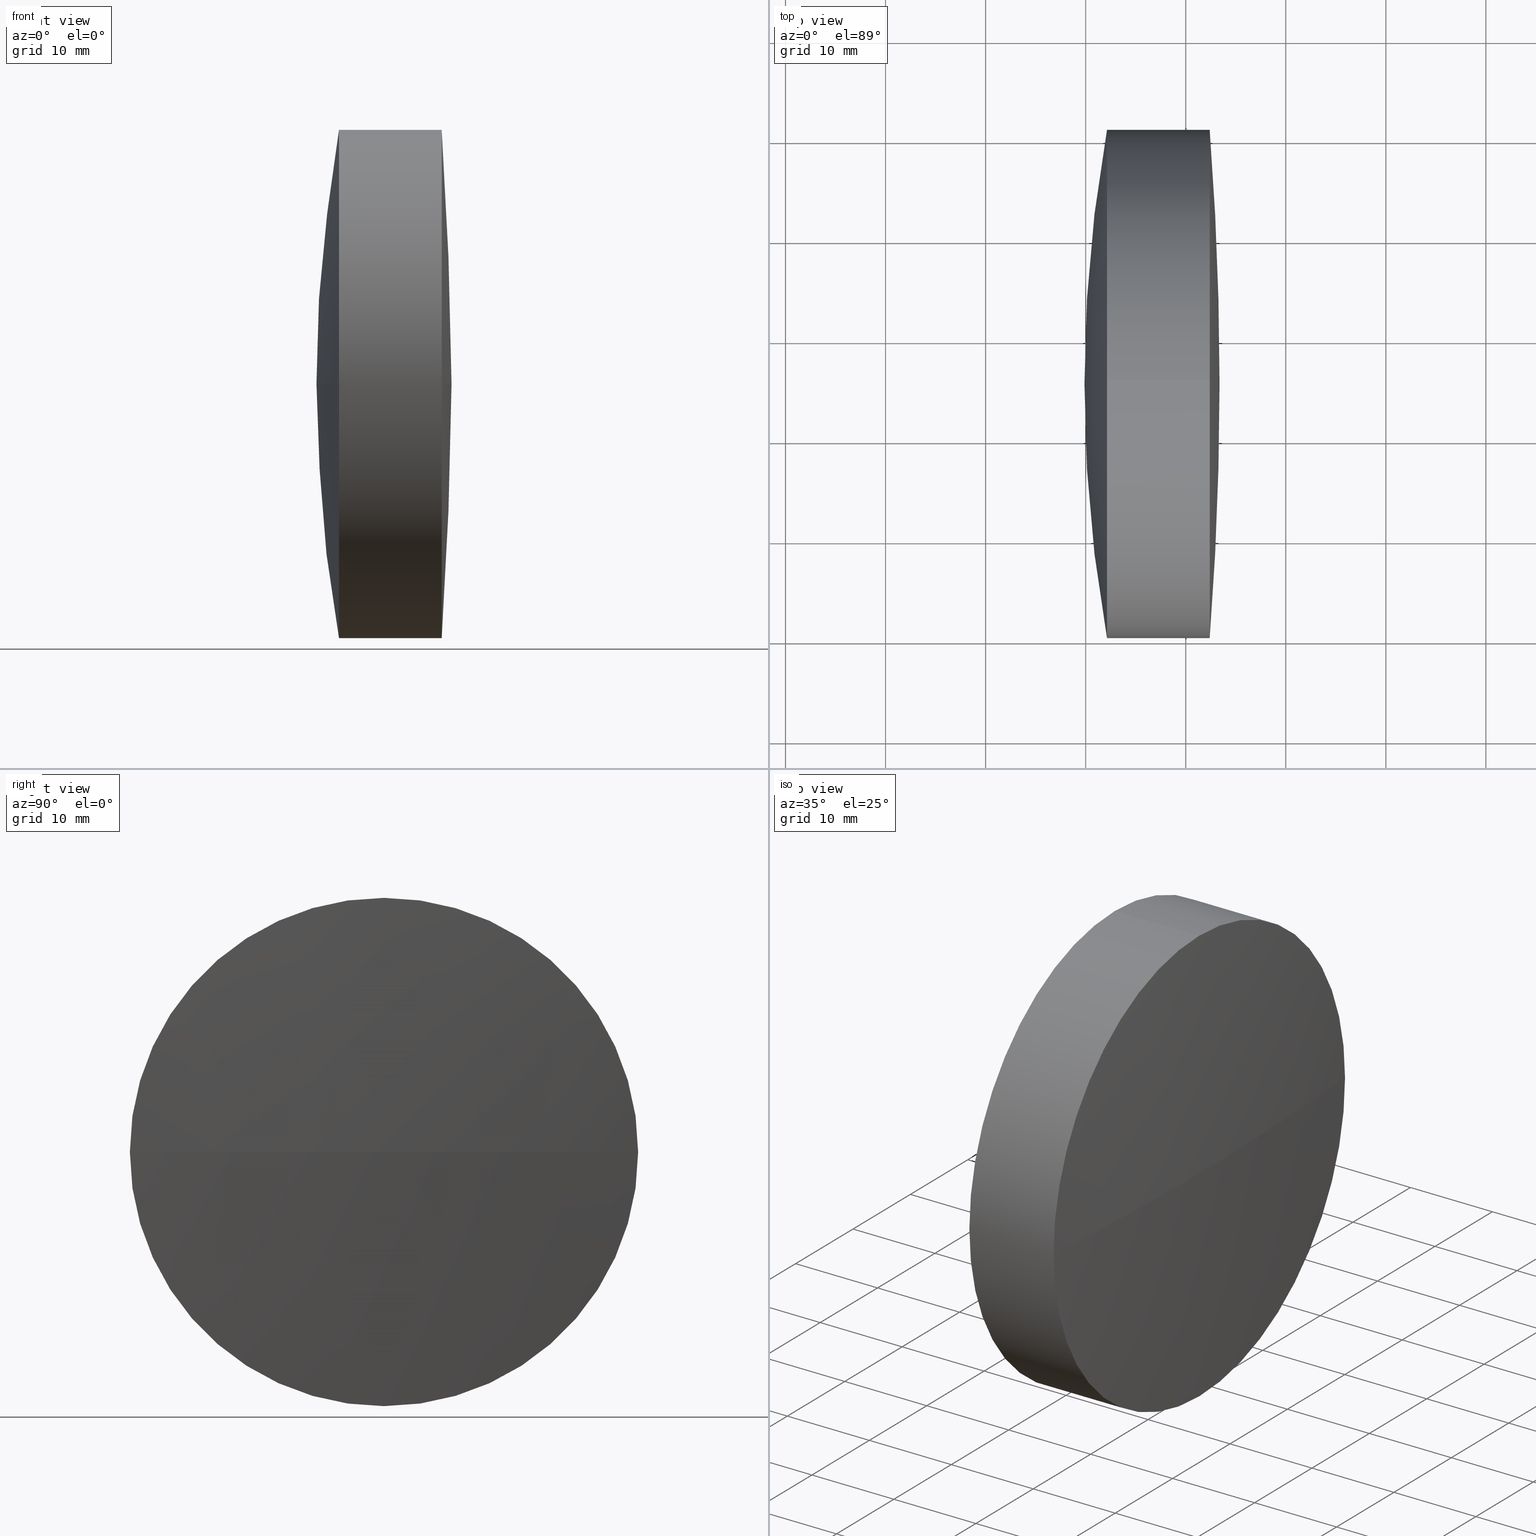
[diagram: canonical four-view strip — front | top / right | iso, engineering-drawing reading convention]
A machine part, canonical four-view strip (front | top / right | iso — engineering-drawing reading convention). The complete STEP part file that produces these views, byte-faithful:
ISO-10303-21;
HEADER;
FILE_DESCRIPTION (( 'STEP AP203' ),
    '1' );
FILE_NAME ('145282.STEP',
    '2024-05-13T01:26:40',
    ( '' ),
    ( '' ),
    'SwSTEP 2.0',
    'SolidWorks 2020',
    '' );
FILE_SCHEMA (( 'CONFIG_CONTROL_DESIGN' ));
ENDSEC;

DATA;
#1 = DIRECTION ( 'NONE',  ( 0.000000000000000000, 0.000000000000000000, 1.000000000000000000 ) ) ;
#2 = CARTESIAN_POINT ( 'NONE',  ( -67.60525454885318197, 25.50979534552412531, 25.39999999999999858 ) ) ;
#3 = AXIS2_PLACEMENT_3D ( 'NONE', #389, #215, #74 ) ;
#4 = VERTEX_POINT ( 'NONE', #2 ) ;
#5 = DIRECTION ( 'NONE',  ( -1.000000000000000000, -0.000000000000000000, -0.000000000000000000 ) ) ;
#6 = VERTEX_POINT ( 'NONE', #61 ) ;
#7 = ORIENTED_EDGE ( 'NONE', *, *, #152, .T. ) ;
#8 = CARTESIAN_POINT ( 'NONE',  ( -80.12090209646052585, 25.50979534552412531, 0.000000000000000000 ) ) ;
#9 = DIRECTION ( 'NONE',  ( 0.000000000000000000, 1.224646799147353207E-16, -1.000000000000000000 ) ) ;
#10 = VERTEX_POINT ( 'NONE', #96 ) ;
#11 = FACE_OUTER_BOUND ( 'NONE', #240, .T. ) ;
#12 = EDGE_CURVE ( 'NONE', #312, #102, #132, .T. ) ;
#13 = EDGE_CURVE ( 'NONE', #297, #245, #123, .T. ) ;
#14 = AXIS2_PLACEMENT_3D ( 'NONE', #336, #101, #1 ) ;
#15 = CC_DESIGN_APPROVAL ( #394, ( #166 ) ) ;
#16 = DIRECTION ( 'NONE',  ( -1.000000000000000000, -0.000000000000000000, -0.000000000000000000 ) ) ;
#17 = APPLICATION_PROTOCOL_DEFINITION ( 'international standard', 'config_control_design', 1994, #127 ) ;
#18 = CARTESIAN_POINT ( 'NONE',  ( -186.0209020964605600, 25.50979534552412531, 0.000000000000000000 ) ) ;
#19 = EDGE_CURVE ( 'NONE', #245, #237, #405, .T. ) ;
#20 = PERSON_AND_ORGANIZATION ( #401, #133 ) ;
#21 = APPROVAL_STATUS ( 'not_yet_approved' ) ;
#22 = CIRCLE ( 'NONE', #73, 25.39999999999999858 ) ;
#23 = PERSON_AND_ORGANIZATION_ROLE ( 'creator' ) ;
#24 = EDGE_CURVE ( 'NONE', #121, #241, #118, .T. ) ;
#25 = DIRECTION ( 'NONE',  ( -1.000000000000000000, -0.000000000000000000, -0.000000000000000000 ) ) ;
#26 = AXIS2_PLACEMENT_3D ( 'NONE', #45, #85, #42 ) ;
#27 = DIRECTION ( 'NONE',  ( -1.000000000000000000, -0.000000000000000000, -0.000000000000000000 ) ) ;
#28 = ORIENTED_EDGE ( 'NONE', *, *, #12, .T. ) ;
#29 = APPROVAL ( #324, 'δָ��' ) ;
#30 = DIRECTION ( 'NONE',  ( 1.000000000000000000, 0.000000000000000000, 0.000000000000000000 ) ) ;
#31 = ORIENTED_EDGE ( 'NONE', *, *, #382, .F. ) ;
#32 = FACE_OUTER_BOUND ( 'NONE', #370, .T. ) ;
#33 = LOCAL_TIME ( 9, 26, 40.00000000000000000, #395 ) ;
#34 = ORIENTED_EDGE ( 'NONE', *, *, #371, .F. ) ;
#35 = CARTESIAN_POINT ( 'NONE',  ( -73.45092386069823931, 25.50979534552412531, 25.39999999999999858 ) ) ;
#36 = VERTEX_POINT ( 'NONE', #286 ) ;
#37 = DIRECTION ( 'NONE',  ( 0.000000000000000000, 1.000000000000000000, 0.000000000000000000 ) ) ;
#38 = ORIENTED_EDGE ( 'NONE', *, *, #219, .F. ) ;
#39 = DIRECTION ( 'NONE',  ( 0.000000000000000000, 0.000000000000000000, 1.000000000000000000 ) ) ;
#40 = VERTEX_POINT ( 'NONE', #179 ) ;
#41 = CARTESIAN_POINT ( 'NONE',  ( -73.45092386069823931, 25.50979534552412531, 0.000000000000000000 ) ) ;
#42 = DIRECTION ( 'NONE',  ( 0.000000000000000000, 1.000000000000000000, 0.000000000000000000 ) ) ;
#43 = ORIENTED_EDGE ( 'NONE', *, *, #13, .F. ) ;
#44 = DIRECTION ( 'NONE',  ( 0.000000000000000000, 1.000000000000000000, 0.000000000000000000 ) ) ;
#45 = CARTESIAN_POINT ( 'NONE',  ( -394.8209020964605429, 25.50979534552412531, 0.000000000000000000 ) ) ;
#46 = PERSON_AND_ORGANIZATION ( #401, #133 ) ;
#47 = CIRCLE ( 'NONE', #288, 25.39999999999999858 ) ;
#48 = CC_DESIGN_PERSON_AND_ORGANIZATION_ASSIGNMENT ( #256, #250, ( #360 ) ) ;
#49 = COORDINATED_UNIVERSAL_TIME_OFFSET ( 8, 0, .AHEAD. ) ;
#50 = PERSON_AND_ORGANIZATION_ROLE ( 'classification_officer' ) ;
#51 = SPHERICAL_SURFACE ( 'NONE', #26, 328.1999999999999886 ) ;
#52 = ADVANCED_FACE ( 'NONE', ( #213 ), #315, .F. ) ;
#53 = CARTESIAN_POINT ( 'NONE',  ( -77.86941598246637852, 25.50979534552412531, 0.000000000000000000 ) ) ;
#54 = CYLINDRICAL_SURFACE ( 'NONE', #82, 25.39999999999999858 ) ;
#55 = CC_DESIGN_DATE_AND_TIME_ASSIGNMENT ( #217, #178, ( #166 ) ) ;
#56 = CARTESIAN_POINT ( 'NONE',  ( -67.60525454885318197, 25.50979534552412531, 0.000000000000000000 ) ) ;
#57 = ORIENTED_EDGE ( 'NONE', *, *, #212, .F. ) ;
#58 = EDGE_CURVE ( 'NONE', #40, #6, #373, .T. ) ;
#59 = CARTESIAN_POINT ( 'NONE',  ( -73.45092386069826773, 25.50979534552412886, -25.39999999999999858 ) ) ;
#60 = ORIENTED_EDGE ( 'NONE', *, *, #103, .F. ) ;
#61 = CARTESIAN_POINT ( 'NONE',  ( -67.60525454885318197, 0.1097953455242040716, -3.110602869834267399E-15 ) ) ;
#62 =( NAMED_UNIT ( * ) PLANE_ANGLE_UNIT ( ) SI_UNIT ( $, .RADIAN. ) );
#63 = AXIS2_PLACEMENT_3D ( 'NONE', #269, #365, #296 ) ;
#64 = EDGE_LOOP ( 'NONE', ( #107, #306, #300, #270 ) ) ;
#65 =( NAMED_UNIT ( * ) SI_UNIT ( $, .STERADIAN. ) SOLID_ANGLE_UNIT ( ) );
#66 = ADVANCED_FACE ( 'NONE', ( #11 ), #176, .T. ) ;
#67 = VERTEX_POINT ( 'NONE', #143 ) ;
#68 = DIRECTION ( 'NONE',  ( -1.000000000000000000, -0.000000000000000000, -0.000000000000000000 ) ) ;
#69 = ORIENTED_EDGE ( 'NONE', *, *, #103, .T. ) ;
#70 = ORIENTED_EDGE ( 'NONE', *, *, #177, .T. ) ;
#71 = DIRECTION ( 'NONE',  ( 0.000000000000000000, 0.000000000000000000, 1.000000000000000000 ) ) ;
#72 = CIRCLE ( 'NONE', #335, 25.39999999999999858 ) ;
#73 = AXIS2_PLACEMENT_3D ( 'NONE', #310, #5, #423 ) ;
#74 = DIRECTION ( 'NONE',  ( 0.000000000000000000, 0.000000000000000000, 1.000000000000000000 ) ) ;
#75 = CARTESIAN_POINT ( 'NONE',  ( -80.12090209646052585, 25.50979534552412531, 0.000000000000000000 ) ) ;
#76 = CARTESIAN_POINT ( 'NONE',  ( -77.86941598246637852, 25.50979534552412531, 25.39999999999999858 ) ) ;
#77 = CALENDAR_DATE ( 2024, 13, 5 ) ;
#78 = CLOSED_SHELL ( 'NONE', ( #95, #138, #84, #66, #396, #427 ) ) ;
#79 = PERSON_AND_ORGANIZATION ( #401, #133 ) ;
#80 = UNCERTAINTY_MEASURE_WITH_UNIT (LENGTH_MEASURE( 1.000000000000000082E-05 ), #342, 'distance_accuracy_value', 'NONE');
#81 = SHAPE_DEFINITION_REPRESENTATION ( #211, #128 ) ;
#82 = AXIS2_PLACEMENT_3D ( 'NONE', #440, #25, #333 ) ;
#83 = ADVANCED_FACE ( 'NONE', ( #141 ), #51, .T. ) ;
#84 = ADVANCED_FACE ( 'NONE', ( #144 ), #115, .T. ) ;
#85 = DIRECTION ( 'NONE',  ( -0.000000000000000000, 0.000000000000000000, -1.000000000000000000 ) ) ;
#86 = DIRECTION ( 'NONE',  ( 0.000000000000000000, 1.000000000000000000, 1.224646799147353207E-16 ) ) ;
#87 = DIRECTION ( 'NONE',  ( 0.000000000000000000, 1.224646799147353207E-16, -1.000000000000000000 ) ) ;
#88 = LINE ( 'NONE', #192, #153 ) ;
#89 = CIRCLE ( 'NONE', #205, 25.39999999999999858 ) ;
#90 = CIRCLE ( 'NONE', #374, 25.39999999999999858 ) ;
#91 = EDGE_LOOP ( 'NONE', ( #274, #171, #137, #28, #308, #376 ) ) ;
#92 = CARTESIAN_POINT ( 'NONE',  ( -394.8209020964605429, 25.50979534552412531, 0.000000000000000000 ) ) ;
#93 = ORIENTED_EDGE ( 'NONE', *, *, #24, .T. ) ;
#94 = CARTESIAN_POINT ( 'NONE',  ( -70.62090209646055428, 25.50979534552412531, 25.39999999999999858 ) ) ;
#95 = ADVANCED_FACE ( 'NONE', ( #351 ), #429, .T. ) ;
#96 = CARTESIAN_POINT ( 'NONE',  ( -73.45092386069826773, 25.50979534552412531, 25.39999999999999858 ) ) ;
#97 = CIRCLE ( 'NONE', #272, 144.4000000000000057 ) ;
#98 = CARTESIAN_POINT ( 'NONE',  ( -77.86941598246637852, 0.1097953455241364173, -3.110602869834276076E-15 ) ) ;
#99 = CC_DESIGN_APPROVAL ( #295, ( #266 ) ) ;
#100 = ORIENTED_EDGE ( 'NONE', *, *, #357, .F. ) ;
#101 = DIRECTION ( 'NONE',  ( -1.000000000000000000, -0.000000000000000000, -0.000000000000000000 ) ) ;
#102 = VERTEX_POINT ( 'NONE', #76 ) ;
#103 = EDGE_CURVE ( 'NONE', #277, #341, #97, .T. ) ;
#104 = ORIENTED_EDGE ( 'NONE', *, *, #305, .T. ) ;
#105 = DIRECTION ( 'NONE',  ( 0.000000000000000000, 0.000000000000000000, -1.000000000000000000 ) ) ;
#106 = ORIENTED_EDGE ( 'NONE', *, *, #129, .F. ) ;
#107 = ORIENTED_EDGE ( 'NONE', *, *, #273, .F. ) ;
#108 = CARTESIAN_POINT ( 'NONE',  ( -186.0209020964605600, 25.50979534552412531, 0.000000000000000000 ) ) ;
#109 = EDGE_CURVE ( 'NONE', #36, #368, #424, .T. ) ;
#110 = AXIS2_PLACEMENT_3D ( 'NONE', #410, #302, #189 ) ;
#111 = CARTESIAN_POINT ( 'NONE',  ( -70.62090209646055428, 25.50979534552413241, 0.000000000000000000 ) ) ;
#112 = APPLICATION_CONTEXT ( 'configuration controlled 3d designs of mechanical parts and assemblies' ) ;
#113 = DIRECTION ( 'NONE',  ( -0.000000000000000000, 0.000000000000000000, -1.000000000000000000 ) ) ;
#114 = DIRECTION ( 'NONE',  ( 1.000000000000000000, 0.000000000000000000, 0.000000000000000000 ) ) ;
#115 = SPHERICAL_SURFACE ( 'NONE', #443, 144.4000000000000057 ) ;
#116 = CIRCLE ( 'NONE', #446, 115.3999999999999915 ) ;
#117 = CARTESIAN_POINT ( 'NONE',  ( 0.000000000000000000, 0.000000000000000000, 0.000000000000000000 ) ) ;
#118 = CIRCLE ( 'NONE', #398, 115.4000000000000057 ) ;
#119 = DIRECTION ( 'NONE',  ( 0.000000000000000000, 1.000000000000000000, 0.000000000000000000 ) ) ;
#120 = DIRECTION ( 'NONE',  ( -0.000000000000000000, 0.000000000000000000, -1.000000000000000000 ) ) ;
#121 = VERTEX_POINT ( 'NONE', #111 ) ;
#122 = DIRECTION ( 'NONE',  ( 0.000000000000000000, 1.000000000000000000, 1.224646799147353207E-16 ) ) ;
#123 = CIRCLE ( 'NONE', #183, 25.39999999999999858 ) ;
#124 = CIRCLE ( 'NONE', #289, 115.4000000000000057 ) ;
#125 = EDGE_LOOP ( 'NONE', ( #330, #104, #280, #60 ) ) ;
#126 = CARTESIAN_POINT ( 'NONE',  ( -73.45092386069826773, 0.1097953455240670284, -3.110602869834283965E-15 ) ) ;
#127 = APPLICATION_CONTEXT ( 'configuration controlled 3d designs of mechanical parts and assemblies' ) ;
#128 = ADVANCED_BREP_SHAPE_REPRESENTATION ( '145282', ( #435, #431, #236 ), #414 ) ;
#129 = EDGE_CURVE ( 'NONE', #237, #10, #282, .T. ) ;
#130 = CARTESIAN_POINT ( 'NONE',  ( -80.12090209646052585, 25.50979534552412531, 25.39999999999999858 ) ) ;
#131 = DIRECTION ( 'NONE',  ( 0.000000000000000000, 0.000000000000000000, 1.000000000000000000 ) ) ;
#132 = LINE ( 'NONE', #130, #383 ) ;
#133 = ORGANIZATION ( 'δָ��', 'δָ��', '' ) ;
#134 = EDGE_CURVE ( 'NONE', #10, #297, #227, .T. ) ;
#135 = ORIENTED_EDGE ( 'NONE', *, *, #177, .F. ) ;
#136 = CARTESIAN_POINT ( 'NONE',  ( -67.60525454885318197, 25.50979534552412531, 0.000000000000000000 ) ) ;
#137 = ORIENTED_EDGE ( 'NONE', *, *, #338, .T. ) ;
#138 = ADVANCED_FACE ( 'NONE', ( #356 ), #175, .T. ) ;
#139 = ORIENTED_EDGE ( 'NONE', *, *, #382, .T. ) ;
#140 = FACE_OUTER_BOUND ( 'NONE', #445, .T. ) ;
#141 = FACE_OUTER_BOUND ( 'NONE', #406, .T. ) ;
#142 = AXIS2_PLACEMENT_3D ( 'NONE', #438, #263, #122 ) ;
#143 = CARTESIAN_POINT ( 'NONE',  ( -70.62090209646055428, 25.50979534552413241, 0.000000000000000000 ) ) ;
#144 = FACE_OUTER_BOUND ( 'NONE', #125, .T. ) ;
#145 = APPROVAL_DATE_TIME ( #187, #394 ) ;
#146 = EDGE_CURVE ( 'NONE', #419, #6, #47, .T. ) ;
#147 = CARTESIAN_POINT ( 'NONE',  ( 64.27909790353947983, 25.50979534552412531, 0.000000000000000000 ) ) ;
#148 = APPROVAL_ROLE ( '' ) ;
#149 = PERSON_AND_ORGANIZATION_ROLE ( 'creator' ) ;
#150 = APPROVAL_PERSON_ORGANIZATION ( #359, #295, #361 ) ;
#151 = CALENDAR_DATE ( 2024, 13, 5 ) ;
#152 = EDGE_CURVE ( 'NONE', #4, #10, #195, .T. ) ;
#153 = VECTOR ( 'NONE', #158, 1000.000000000000000 ) ;
#154 = CARTESIAN_POINT ( 'NONE',  ( -73.45092386069823931, 50.90979534552411678, 0.000000000000000000 ) ) ;
#155 = CARTESIAN_POINT ( 'NONE',  ( -186.0209020964605600, 25.50979534552412531, 0.000000000000000000 ) ) ;
#156 = ORIENTED_EDGE ( 'NONE', *, *, #24, .F. ) ;
#157 = ORIENTED_EDGE ( 'NONE', *, *, #186, .T. ) ;
#158 = DIRECTION ( 'NONE',  ( -1.000000000000000000, -0.000000000000000000, -0.000000000000000000 ) ) ;
#159 = CIRCLE ( 'NONE', #425, 115.3999999999999915 ) ;
#160 = LOCAL_TIME ( 9, 26, 40.00000000000000000, #321 ) ;
#161 = ADVANCED_FACE ( 'NONE', ( #32 ), #54, .T. ) ;
#162 = CARTESIAN_POINT ( 'NONE',  ( -73.45092386069826773, 25.50979534552412531, 0.000000000000000000 ) ) ;
#163 = CARTESIAN_POINT ( 'NONE',  ( -73.45092386069823931, 25.50979534552412531, 0.000000000000000000 ) ) ;
#164 = ORIENTED_EDGE ( 'NONE', *, *, #152, .F. ) ;
#165 = DIRECTION ( 'NONE',  ( -0.000000000000000000, 0.000000000000000000, -1.000000000000000000 ) ) ;
#166 = PRODUCT_DEFINITION ( 'δ֪', '', #259, #284 ) ;
#167 = EDGE_LOOP ( 'NONE', ( #239, #276, #38, #135, #418, #441 ) ) ;
#168 = AXIS2_PLACEMENT_3D ( 'NONE', #147, #347, #319 ) ;
#169 = DIRECTION ( 'NONE',  ( -1.000000000000000000, -0.000000000000000000, -0.000000000000000000 ) ) ;
#170 = ORIENTED_EDGE ( 'NONE', *, *, #181, .T. ) ;
#171 = ORIENTED_EDGE ( 'NONE', *, *, #388, .T. ) ;
#172 = CARTESIAN_POINT ( 'NONE',  ( -67.60525454885318197, 25.50979534552412886, -25.39999999999999858 ) ) ;
#173 = DIRECTION ( 'NONE',  ( -0.000000000000000000, 0.000000000000000000, 1.000000000000000000 ) ) ;
#174 = ORIENTED_EDGE ( 'NONE', *, *, #273, .T. ) ;
#175 = SPHERICAL_SURFACE ( 'NONE', #437, 115.4000000000000057 ) ;
#176 = SPHERICAL_SURFACE ( 'NONE', #168, 144.4000000000000057 ) ;
#177 = EDGE_CURVE ( 'NONE', #102, #277, #89, .T. ) ;
#178 = DATE_TIME_ROLE ( 'creation_date' ) ;
#179 = CARTESIAN_POINT ( 'NONE',  ( -66.62090209646054006, 25.50979534552414663, 0.000000000000000000 ) ) ;
#180 = DIRECTION ( 'NONE',  ( 0.000000000000000000, 0.000000000000000000, 1.000000000000000000 ) ) ;
#181 = EDGE_CURVE ( 'NONE', #334, #102, #72, .T. ) ;
#182 = PERSON_AND_ORGANIZATION ( #401, #133 ) ;
#183 = AXIS2_PLACEMENT_3D ( 'NONE', #162, #378, #199 ) ;
#184 = MECHANICAL_CONTEXT ( 'NONE', #112, 'mechanical' ) ;
#185 = AXIS2_PLACEMENT_3D ( 'NONE', #92, #120, #119 ) ;
#186 = EDGE_CURVE ( 'NONE', #419, #245, #88, .T. ) ;
#187 = DATE_AND_TIME ( #390, #392 ) ;
#188 = CARTESIAN_POINT ( 'NONE',  ( 64.27909790353947983, 25.50979534552412531, 0.000000000000000000 ) ) ;
#189 = DIRECTION ( 'NONE',  ( 0.000000000000000000, 0.000000000000000000, 1.000000000000000000 ) ) ;
#190 = VECTOR ( 'NONE', #325, 1000.000000000000000 ) ;
#191 = CIRCLE ( 'NONE', #400, 25.39999999999999858 ) ;
#192 = CARTESIAN_POINT ( 'NONE',  ( -70.62090209646055428, 25.50979534552412886, -25.39999999999999858 ) ) ;
#193 = CARTESIAN_POINT ( 'NONE',  ( -77.86941598246637852, 25.50979534552412531, 0.000000000000000000 ) ) ;
#194 = ORIENTED_EDGE ( 'NONE', *, *, #255, .F. ) ;
#195 = LINE ( 'NONE', #94, #258 ) ;
#196 = EDGE_LOOP ( 'NONE', ( #279, #332, #31, #57 ) ) ;
#197 = CIRCLE ( 'NONE', #63, 25.39999999999999858 ) ;
#198 = LOCAL_TIME ( 9, 26, 40.00000000000000000, #323 ) ;
#199 = DIRECTION ( 'NONE',  ( 0.000000000000000000, 0.000000000000000000, 1.000000000000000000 ) ) ;
#200 = DIRECTION ( 'NONE',  ( -1.000000000000000000, -0.000000000000000000, -0.000000000000000000 ) ) ;
#201 = DIRECTION ( 'NONE',  ( -0.000000000000000000, 0.000000000000000000, 1.000000000000000000 ) ) ;
#202 = ORIENTED_EDGE ( 'NONE', *, *, #225, .F. ) ;
#203 = CARTESIAN_POINT ( 'NONE',  ( -77.86941598246637852, 25.50979534552412886, -25.39999999999999858 ) ) ;
#204 = ORIENTED_EDGE ( 'NONE', *, *, #357, .T. ) ;
#205 = AXIS2_PLACEMENT_3D ( 'NONE', #193, #299, #231 ) ;
#206 = ORIENTED_EDGE ( 'NONE', *, *, #298, .F. ) ;
#207 = DIRECTION ( 'NONE',  ( -1.000000000000000000, -0.000000000000000000, -0.000000000000000000 ) ) ;
#208 = CIRCLE ( 'NONE', #407, 25.39999999999999858 ) ;
#209 = ORIENTED_EDGE ( 'NONE', *, *, #233, .F. ) ;
#210 = CARTESIAN_POINT ( 'NONE',  ( -80.12090209646052585, 25.50979534552412886, -25.39999999999999858 ) ) ;
#211 = PRODUCT_DEFINITION_SHAPE ( 'NONE', 'NONE',  #166 ) ;
#212 = EDGE_CURVE ( 'NONE', #6, #4, #244, .T. ) ;
#213 = FACE_OUTER_BOUND ( 'NONE', #64, .T. ) ;
#214 = AXIS2_PLACEMENT_3D ( 'NONE', #56, #408, #326 ) ;
#215 = DIRECTION ( 'NONE',  ( -1.000000000000000000, -0.000000000000000000, -0.000000000000000000 ) ) ;
#216 = APPROVAL_PERSON_ORGANIZATION ( #436, #29, #148 ) ;
#217 = DATE_AND_TIME ( #77, #33 ) ;
#218 = CALENDAR_DATE ( 2024, 13, 5 ) ;
#219 = EDGE_CURVE ( 'NONE', #277, #368, #301, .T. ) ;
#220 = PERSON_AND_ORGANIZATION_ROLE ( 'design_supplier' ) ;
#221 = APPROVAL_ROLE ( '' ) ;
#222 = CIRCLE ( 'NONE', #355, 25.39999999999999858 ) ;
#223 = CARTESIAN_POINT ( 'NONE',  ( -394.8209020964605429, 25.50979534552412531, 0.000000000000000000 ) ) ;
#224 = DIRECTION ( 'NONE',  ( 1.000000000000000000, 0.000000000000000000, 0.000000000000000000 ) ) ;
#225 = EDGE_CURVE ( 'NONE', #334, #341, #362, .T. ) ;
#226 = DIRECTION ( 'NONE',  ( 0.000000000000000000, 1.000000000000000000, 1.224646799147353207E-16 ) ) ;
#227 = CIRCLE ( 'NONE', #3, 25.39999999999999858 ) ;
#228 = AXIS2_PLACEMENT_3D ( 'NONE', #246, #417, #307 ) ;
#229 = CARTESIAN_POINT ( 'NONE',  ( -77.86941598246637852, 50.90979534552411678, 0.000000000000000000 ) ) ;
#230 = VERTEX_POINT ( 'NONE', #369 ) ;
#231 = DIRECTION ( 'NONE',  ( 0.000000000000000000, 0.000000000000000000, 1.000000000000000000 ) ) ;
#232 = ORIENTED_EDGE ( 'NONE', *, *, #146, .T. ) ;
#233 = EDGE_CURVE ( 'NONE', #121, #242, #159, .T. ) ;
#234 = FACE_OUTER_BOUND ( 'NONE', #196, .T. ) ;
#235 = AXIS2_PLACEMENT_3D ( 'NONE', #399, #386, #249 ) ;
#236 = AXIS2_PLACEMENT_3D ( 'NONE', #117, #180, #320 ) ;
#237 = VERTEX_POINT ( 'NONE', #126 ) ;
#238 = DIRECTION ( 'NONE',  ( 0.000000000000000000, 0.000000000000000000, 1.000000000000000000 ) ) ;
#239 = ORIENTED_EDGE ( 'NONE', *, *, #371, .T. ) ;
#240 = EDGE_LOOP ( 'NONE', ( #202, #170, #70, #69 ) ) ;
#241 = VERTEX_POINT ( 'NONE', #154 ) ;
#242 = VERTEX_POINT ( 'NONE', #447 ) ;
#243 = DIRECTION ( 'NONE',  ( 0.000000000000000000, 0.000000000000000000, 1.000000000000000000 ) ) ;
#244 = CIRCLE ( 'NONE', #214, 25.39999999999999858 ) ;
#245 = VERTEX_POINT ( 'NONE', #59 ) ;
#246 = CARTESIAN_POINT ( 'NONE',  ( -70.62090209646055428, 25.50979534552412531, 0.000000000000000000 ) ) ;
#247 = DIRECTION ( 'NONE',  ( 0.000000000000000000, 1.000000000000000000, 0.000000000000000000 ) ) ;
#248 = CARTESIAN_POINT ( 'NONE',  ( -67.60525454885318197, 25.50979534552412531, 0.000000000000000000 ) ) ;
#249 = DIRECTION ( 'NONE',  ( 0.000000000000000000, 0.000000000000000000, 1.000000000000000000 ) ) ;
#250 = PERSON_AND_ORGANIZATION_ROLE ( 'design_owner' ) ;
#251 = CC_DESIGN_DATE_AND_TIME_ASSIGNMENT ( #254, #393, ( #266 ) ) ;
#252 = DIRECTION ( 'NONE',  ( 0.000000000000000000, 0.000000000000000000, -1.000000000000000000 ) ) ;
#253 = CC_DESIGN_APPROVAL ( #29, ( #259 ) ) ;
#254 = DATE_AND_TIME ( #218, #160 ) ;
#255 = EDGE_CURVE ( 'NONE', #312, #241, #197, .T. ) ;
#256 = PERSON_AND_ORGANIZATION ( #401, #133 ) ;
#257 = DATE_AND_TIME ( #151, #198 ) ;
#258 = VECTOR ( 'NONE', #404, 1000.000000000000000 ) ;
#259 = PRODUCT_DEFINITION_FORMATION_WITH_SPECIFIED_SOURCE ( '�κ�', '', #360, .NOT_KNOWN. ) ;
#260 = CARTESIAN_POINT ( 'NONE',  ( -186.0209020964605600, 25.50979534552412531, 0.000000000000000000 ) ) ;
#261 = ADVANCED_FACE ( 'NONE', ( #234 ), #442, .T. ) ;
#262 = DIRECTION ( 'NONE',  ( 0.000000000000000000, 0.000000000000000000, 1.000000000000000000 ) ) ;
#263 = DIRECTION ( 'NONE',  ( 0.000000000000000000, 1.224646799147353207E-16, -1.000000000000000000 ) ) ;
#264 = CC_DESIGN_PERSON_AND_ORGANIZATION_ASSIGNMENT ( #79, #149, ( #166 ) ) ;
#265 = ORIENTED_EDGE ( 'NONE', *, *, #292, .F. ) ;
#266 = SECURITY_CLASSIFICATION ( '', '', #430 ) ;
#267 = DIRECTION ( 'NONE',  ( -1.000000000000000000, -0.000000000000000000, -0.000000000000000000 ) ) ;
#268 = ORIENTED_EDGE ( 'NONE', *, *, #338, .F. ) ;
#269 = CARTESIAN_POINT ( 'NONE',  ( -73.45092386069823931, 25.50979534552412531, 0.000000000000000000 ) ) ;
#270 = ORIENTED_EDGE ( 'NONE', *, *, #19, .T. ) ;
#271 = DIRECTION ( 'NONE',  ( 0.000000000000000000, 0.000000000000000000, 1.000000000000000000 ) ) ;
#272 = AXIS2_PLACEMENT_3D ( 'NONE', #363, #173, #114 ) ;
#273 = EDGE_CURVE ( 'NONE', #67, #237, #116, .T. ) ;
#274 = ORIENTED_EDGE ( 'NONE', *, *, #109, .F. ) ;
#275 = DIRECTION ( 'NONE',  ( -1.000000000000000000, -0.000000000000000000, -0.000000000000000000 ) ) ;
#276 = ORIENTED_EDGE ( 'NONE', *, *, #109, .T. ) ;
#277 = VERTEX_POINT ( 'NONE', #229 ) ;
#278 = CYLINDRICAL_SURFACE ( 'NONE', #444, 25.39999999999999858 ) ;
#279 = ORIENTED_EDGE ( 'NONE', *, *, #58, .F. ) ;
#280 = ORIENTED_EDGE ( 'NONE', *, *, #225, .T. ) ;
#281 = CYLINDRICAL_SURFACE ( 'NONE', #228, 25.39999999999999858 ) ;
#282 = CIRCLE ( 'NONE', #235, 25.39999999999999858 ) ;
#283 = LOCAL_TIME ( 9, 26, 40.00000000000000000, #290 ) ;
#284 = DESIGN_CONTEXT ( 'detailed design', #127, 'design' ) ;
#285 = DIRECTION ( 'NONE',  ( 0.000000000000000000, 0.000000000000000000, 1.000000000000000000 ) ) ;
#286 = CARTESIAN_POINT ( 'NONE',  ( -73.45092386069823931, 25.50979534552412886, -25.39999999999999858 ) ) ;
#287 = APPROVAL_DATE_TIME ( #358, #29 ) ;
#288 = AXIS2_PLACEMENT_3D ( 'NONE', #248, #27, #403 ) ;
#289 = AXIS2_PLACEMENT_3D ( 'NONE', #367, #262, #224 ) ;
#290 = COORDINATED_UNIVERSAL_TIME_OFFSET ( 8, 0, .AHEAD. ) ;
#291 = APPROVAL_STATUS ( 'not_yet_approved' ) ;
#292 = EDGE_CURVE ( 'NONE', #67, #297, #124, .T. ) ;
#293 = AXIS2_PLACEMENT_3D ( 'NONE', #420, #105, #37 ) ;
#294 = DIRECTION ( 'NONE',  ( 0.000000000000000000, 0.000000000000000000, 1.000000000000000000 ) ) ;
#295 = APPROVAL ( #21, 'δָ��' ) ;
#296 = DIRECTION ( 'NONE',  ( 0.000000000000000000, 0.000000000000000000, 1.000000000000000000 ) ) ;
#297 = VERTEX_POINT ( 'NONE', #364 ) ;
#298 = EDGE_CURVE ( 'NONE', #40, #230, #322, .T. ) ;
#299 = DIRECTION ( 'NONE',  ( -1.000000000000000000, -0.000000000000000000, -0.000000000000000000 ) ) ;
#300 = ORIENTED_EDGE ( 'NONE', *, *, #13, .T. ) ;
#301 = CIRCLE ( 'NONE', #110, 25.39999999999999858 ) ;
#302 = DIRECTION ( 'NONE',  ( -1.000000000000000000, -0.000000000000000000, -0.000000000000000000 ) ) ;
#303 = ORIENTED_EDGE ( 'NONE', *, *, #134, .F. ) ;
#304 = CARTESIAN_POINT ( 'NONE',  ( -73.45092386069823931, 25.50979534552412531, 0.000000000000000000 ) ) ;
#305 = EDGE_CURVE ( 'NONE', #368, #334, #90, .T. ) ;
#306 = ORIENTED_EDGE ( 'NONE', *, *, #292, .T. ) ;
#307 = DIRECTION ( 'NONE',  ( 0.000000000000000000, 0.000000000000000000, 1.000000000000000000 ) ) ;
#308 = ORIENTED_EDGE ( 'NONE', *, *, #181, .F. ) ;
#309 = AXIS2_PLACEMENT_3D ( 'NONE', #163, #68, #39 ) ;
#310 = CARTESIAN_POINT ( 'NONE',  ( -67.60525454885318197, 25.50979534552412531, 0.000000000000000000 ) ) ;
#311 = ORIENTED_EDGE ( 'NONE', *, *, #186, .F. ) ;
#312 = VERTEX_POINT ( 'NONE', #35 ) ;
#313 = FACE_OUTER_BOUND ( 'NONE', #91, .T. ) ;
#314 = EDGE_LOOP ( 'NONE', ( #156, #380, #349, #34 ) ) ;
#315 = SPHERICAL_SURFACE ( 'NONE', #391, 115.4000000000000057 ) ;
#316 = APPROVAL_PERSON_ORGANIZATION ( #20, #394, #221 ) ;
#317 = DIRECTION ( 'NONE',  ( -0.000000000000000000, 0.000000000000000000, -1.000000000000000000 ) ) ;
#318 = APPLICATION_PROTOCOL_DEFINITION ( 'international standard', 'config_control_design', 1994, #112 ) ;
#319 = DIRECTION ( 'NONE',  ( 0.000000000000000000, 1.000000000000000000, 0.000000000000000000 ) ) ;
#320 = DIRECTION ( 'NONE',  ( 1.000000000000000000, 0.000000000000000000, 0.000000000000000000 ) ) ;
#321 = COORDINATED_UNIVERSAL_TIME_OFFSET ( 8, 0, .AHEAD. ) ;
#322 = CIRCLE ( 'NONE', #366, 328.1999999999999886 ) ;
#323 = COORDINATED_UNIVERSAL_TIME_OFFSET ( 8, 0, .AHEAD. ) ;
#324 = APPROVAL_STATUS ( 'not_yet_approved' ) ;
#325 = DIRECTION ( 'NONE',  ( -1.000000000000000000, -0.000000000000000000, -0.000000000000000000 ) ) ;
#326 = DIRECTION ( 'NONE',  ( 0.000000000000000000, 0.000000000000000000, 1.000000000000000000 ) ) ;
#327 = CLOSED_SHELL ( 'NONE', ( #439, #83, #348, #52, #261, #161 ) ) ;
#328 = AXIS2_PLACEMENT_3D ( 'NONE', #108, #165, #44 ) ;
#329 = DIRECTION ( 'NONE',  ( -0.000000000000000000, 0.000000000000000000, 1.000000000000000000 ) ) ;
#330 = ORIENTED_EDGE ( 'NONE', *, *, #219, .T. ) ;
#331 = CARTESIAN_POINT ( 'NONE',  ( -394.8209020964605429, 25.50979534552412531, 0.000000000000000000 ) ) ;
#332 = ORIENTED_EDGE ( 'NONE', *, *, #298, .T. ) ;
#333 = DIRECTION ( 'NONE',  ( 0.000000000000000000, 0.000000000000000000, 1.000000000000000000 ) ) ;
#334 = VERTEX_POINT ( 'NONE', #98 ) ;
#335 = AXIS2_PLACEMENT_3D ( 'NONE', #53, #267, #294 ) ;
#336 = CARTESIAN_POINT ( 'NONE',  ( -73.45092386069826773, 25.50979534552412531, 0.000000000000000000 ) ) ;
#337 = FACE_OUTER_BOUND ( 'NONE', #421, .T. ) ;
#338 = EDGE_CURVE ( 'NONE', #242, #312, #222, .T. ) ;
#339 = DIRECTION ( 'NONE',  ( 1.000000000000000000, 0.000000000000000000, 0.000000000000000000 ) ) ;
#340 = CARTESIAN_POINT ( 'NONE',  ( -80.12090209646052585, 25.50979534552413597, 0.000000000000000000 ) ) ;
#341 = VERTEX_POINT ( 'NONE', #340 ) ;
#342 =( LENGTH_UNIT ( ) NAMED_UNIT ( * ) SI_UNIT ( .MILLI., .METRE. ) );
#343 = PRODUCT_RELATED_PRODUCT_CATEGORY ( 'detail', '', ( #360 ) ) ;
#344 = ORIENTED_EDGE ( 'NONE', *, *, #58, .T. ) ;
#345 = EDGE_LOOP ( 'NONE', ( #265, #174, #385, #379 ) ) ;
#346 = SPHERICAL_SURFACE ( 'NONE', #328, 115.4000000000000057 ) ;
#347 = DIRECTION ( 'NONE',  ( -0.000000000000000000, 0.000000000000000000, -1.000000000000000000 ) ) ;
#348 = ADVANCED_FACE ( 'NONE', ( #350 ), #412, .F. ) ;
#349 = ORIENTED_EDGE ( 'NONE', *, *, #388, .F. ) ;
#350 = FACE_OUTER_BOUND ( 'NONE', #345, .T. ) ;
#351 = FACE_OUTER_BOUND ( 'NONE', #167, .T. ) ;
#352 = DIRECTION ( 'NONE',  ( 0.000000000000000000, 1.000000000000000000, 1.224646799147353207E-16 ) ) ;
#353 = CALENDAR_DATE ( 2024, 13, 5 ) ;
#354 = AXIS2_PLACEMENT_3D ( 'NONE', #223, #9, #352 ) ;
#355 = AXIS2_PLACEMENT_3D ( 'NONE', #41, #169, #243 ) ;
#356 = FACE_OUTER_BOUND ( 'NONE', #314, .T. ) ;
#357 = EDGE_CURVE ( 'NONE', #230, #419, #208, .T. ) ;
#358 = DATE_AND_TIME ( #353, #283 ) ;
#359 = PERSON_AND_ORGANIZATION ( #401, #133 ) ;
#360 = PRODUCT ( '145282', '145282', '', ( #184 ) ) ;
#361 = APPROVAL_ROLE ( '' ) ;
#362 = CIRCLE ( 'NONE', #142, 144.4000000000000341 ) ;
#363 = CARTESIAN_POINT ( 'NONE',  ( 64.27909790353947983, 25.50979534552412531, 0.000000000000000000 ) ) ;
#364 = CARTESIAN_POINT ( 'NONE',  ( -73.45092386069826773, 50.90979534552418784, 0.000000000000000000 ) ) ;
#365 = DIRECTION ( 'NONE',  ( -1.000000000000000000, -0.000000000000000000, -0.000000000000000000 ) ) ;
#366 = AXIS2_PLACEMENT_3D ( 'NONE', #331, #329, #30 ) ;
#367 = CARTESIAN_POINT ( 'NONE',  ( -186.0209020964605600, 25.50979534552412531, 0.000000000000000000 ) ) ;
#368 = VERTEX_POINT ( 'NONE', #203 ) ;
#369 = CARTESIAN_POINT ( 'NONE',  ( -67.60525454885318197, 50.90979534552404573, 0.000000000000000000 ) ) ;
#370 = EDGE_LOOP ( 'NONE', ( #311, #232, #372, #7, #106, #422 ) ) ;
#371 = EDGE_CURVE ( 'NONE', #241, #36, #191, .T. ) ;
#372 = ORIENTED_EDGE ( 'NONE', *, *, #212, .T. ) ;
#373 = CIRCLE ( 'NONE', #354, 328.1999999999999886 ) ;
#374 = AXIS2_PLACEMENT_3D ( 'NONE', #411, #381, #271 ) ;
#375 = CARTESIAN_POINT ( 'NONE',  ( -186.0209020964605600, 25.50979534552412531, 0.000000000000000000 ) ) ;
#376 = ORIENTED_EDGE ( 'NONE', *, *, #305, .F. ) ;
#377 = CC_DESIGN_PERSON_AND_ORGANIZATION_ASSIGNMENT ( #182, #50, ( #266 ) ) ;
#378 = DIRECTION ( 'NONE',  ( -1.000000000000000000, -0.000000000000000000, -0.000000000000000000 ) ) ;
#379 = ORIENTED_EDGE ( 'NONE', *, *, #134, .T. ) ;
#380 = ORIENTED_EDGE ( 'NONE', *, *, #233, .T. ) ;
#381 = DIRECTION ( 'NONE',  ( -1.000000000000000000, -0.000000000000000000, -0.000000000000000000 ) ) ;
#382 = EDGE_CURVE ( 'NONE', #4, #230, #22, .T. ) ;
#383 = VECTOR ( 'NONE', #416, 1000.000000000000000 ) ;
#384 = CC_DESIGN_SECURITY_CLASSIFICATION ( #266, ( #259 ) ) ;
#385 = ORIENTED_EDGE ( 'NONE', *, *, #129, .T. ) ;
#386 = DIRECTION ( 'NONE',  ( -1.000000000000000000, -0.000000000000000000, -0.000000000000000000 ) ) ;
#387 = DIRECTION ( 'NONE',  ( 0.000000000000000000, 1.000000000000000000, 0.000000000000000000 ) ) ;
#388 = EDGE_CURVE ( 'NONE', #36, #242, #433, .T. ) ;
#389 = CARTESIAN_POINT ( 'NONE',  ( -73.45092386069826773, 25.50979534552412531, 0.000000000000000000 ) ) ;
#390 = CALENDAR_DATE ( 2024, 13, 5 ) ;
#391 = AXIS2_PLACEMENT_3D ( 'NONE', #18, #252, #428 ) ;
#392 = LOCAL_TIME ( 9, 26, 40.00000000000000000, #49 ) ;
#393 = DATE_TIME_ROLE ( 'classification_date' ) ;
#394 = APPROVAL ( #291, 'δָ��' ) ;
#395 = COORDINATED_UNIVERSAL_TIME_OFFSET ( 8, 0, .AHEAD. ) ;
#396 = ADVANCED_FACE ( 'NONE', ( #337 ), #346, .T. ) ;
#397 = APPROVAL_DATE_TIME ( #257, #295 ) ;
#398 = AXIS2_PLACEMENT_3D ( 'NONE', #375, #201, #339 ) ;
#399 = CARTESIAN_POINT ( 'NONE',  ( -73.45092386069826773, 25.50979534552412531, 0.000000000000000000 ) ) ;
#400 = AXIS2_PLACEMENT_3D ( 'NONE', #304, #207, #238 ) ;
#401 = PERSON ( 'δָ��', 'δָ��', 'δָ��', ('δָ��'), ('δָ��'), ('δָ��') ) ;
#402 = DIRECTION ( 'NONE',  ( 0.000000000000000000, 1.224646799147353207E-16, -1.000000000000000000 ) ) ;
#403 = DIRECTION ( 'NONE',  ( 0.000000000000000000, 0.000000000000000000, 1.000000000000000000 ) ) ;
#404 = DIRECTION ( 'NONE',  ( -1.000000000000000000, -0.000000000000000000, -0.000000000000000000 ) ) ;
#405 = CIRCLE ( 'NONE', #14, 25.39999999999999858 ) ;
#406 = EDGE_LOOP ( 'NONE', ( #206, #344, #409, #100 ) ) ;
#407 = AXIS2_PLACEMENT_3D ( 'NONE', #136, #200, #71 ) ;
#408 = DIRECTION ( 'NONE',  ( -1.000000000000000000, -0.000000000000000000, -0.000000000000000000 ) ) ;
#409 = ORIENTED_EDGE ( 'NONE', *, *, #146, .F. ) ;
#410 = CARTESIAN_POINT ( 'NONE',  ( -77.86941598246637852, 25.50979534552412531, 0.000000000000000000 ) ) ;
#411 = CARTESIAN_POINT ( 'NONE',  ( -77.86941598246637852, 25.50979534552412531, 0.000000000000000000 ) ) ;
#412 = SPHERICAL_SURFACE ( 'NONE', #293, 115.4000000000000057 ) ;
#413 = AXIS2_PLACEMENT_3D ( 'NONE', #75, #16, #285 ) ;
#414 =( GEOMETRIC_REPRESENTATION_CONTEXT ( 3 ) GLOBAL_UNCERTAINTY_ASSIGNED_CONTEXT ( ( #80 ) ) GLOBAL_UNIT_ASSIGNED_CONTEXT ( ( #342, #62, #65 ) ) REPRESENTATION_CONTEXT ( 'NONE', 'WORKASPACE' ) );
#415 = CC_DESIGN_PERSON_AND_ORGANIZATION_ASSIGNMENT ( #46, #220, ( #259 ) ) ;
#416 = DIRECTION ( 'NONE',  ( -1.000000000000000000, -0.000000000000000000, -0.000000000000000000 ) ) ;
#417 = DIRECTION ( 'NONE',  ( -1.000000000000000000, -0.000000000000000000, -0.000000000000000000 ) ) ;
#418 = ORIENTED_EDGE ( 'NONE', *, *, #12, .F. ) ;
#419 = VERTEX_POINT ( 'NONE', #172 ) ;
#420 = CARTESIAN_POINT ( 'NONE',  ( -186.0209020964605600, 25.50979534552412531, 0.000000000000000000 ) ) ;
#421 = EDGE_LOOP ( 'NONE', ( #209, #93, #194, #268 ) ) ;
#422 = ORIENTED_EDGE ( 'NONE', *, *, #19, .F. ) ;
#423 = DIRECTION ( 'NONE',  ( 0.000000000000000000, 0.000000000000000000, 1.000000000000000000 ) ) ;
#424 = LINE ( 'NONE', #210, #190 ) ;
#425 = AXIS2_PLACEMENT_3D ( 'NONE', #155, #87, #226 ) ;
#426 = CARTESIAN_POINT ( 'NONE',  ( -186.0209020964605600, 25.50979534552412531, 0.000000000000000000 ) ) ;
#427 = ADVANCED_FACE ( 'NONE', ( #313 ), #278, .T. ) ;
#428 = DIRECTION ( 'NONE',  ( 0.000000000000000000, 1.000000000000000000, 0.000000000000000000 ) ) ;
#429 = CYLINDRICAL_SURFACE ( 'NONE', #413, 25.39999999999999858 ) ;
#430 = SECURITY_CLASSIFICATION_LEVEL ( 'unclassified' ) ;
#431 = MANIFOLD_SOLID_BREP ( '145282b-1-solid1', #327 ) ;
#432 = CC_DESIGN_PERSON_AND_ORGANIZATION_ASSIGNMENT ( #434, #23, ( #259 ) ) ;
#433 = CIRCLE ( 'NONE', #309, 25.39999999999999858 ) ;
#434 = PERSON_AND_ORGANIZATION ( #401, #133 ) ;
#435 = MANIFOLD_SOLID_BREP ( '145282a-1-solid1', #78 ) ;
#436 = PERSON_AND_ORGANIZATION ( #401, #133 ) ;
#437 = AXIS2_PLACEMENT_3D ( 'NONE', #426, #113, #387 ) ;
#438 = CARTESIAN_POINT ( 'NONE',  ( 64.27909790353947983, 25.50979534552412531, 0.000000000000000000 ) ) ;
#439 = ADVANCED_FACE ( 'NONE', ( #140 ), #281, .T. ) ;
#440 = CARTESIAN_POINT ( 'NONE',  ( -70.62090209646055428, 25.50979534552412531, 0.000000000000000000 ) ) ;
#441 = ORIENTED_EDGE ( 'NONE', *, *, #255, .T. ) ;
#442 = SPHERICAL_SURFACE ( 'NONE', #185, 328.1999999999999886 ) ;
#443 = AXIS2_PLACEMENT_3D ( 'NONE', #188, #317, #247 ) ;
#444 = AXIS2_PLACEMENT_3D ( 'NONE', #8, #275, #131 ) ;
#445 = EDGE_LOOP ( 'NONE', ( #204, #157, #43, #303, #164, #139 ) ) ;
#446 = AXIS2_PLACEMENT_3D ( 'NONE', #260, #402, #86 ) ;
#447 = CARTESIAN_POINT ( 'NONE',  ( -73.45092386069823931, 0.1097953455241364173, -3.110602869834275682E-15 ) ) ;
ENDSEC;
END-ISO-10303-21;
